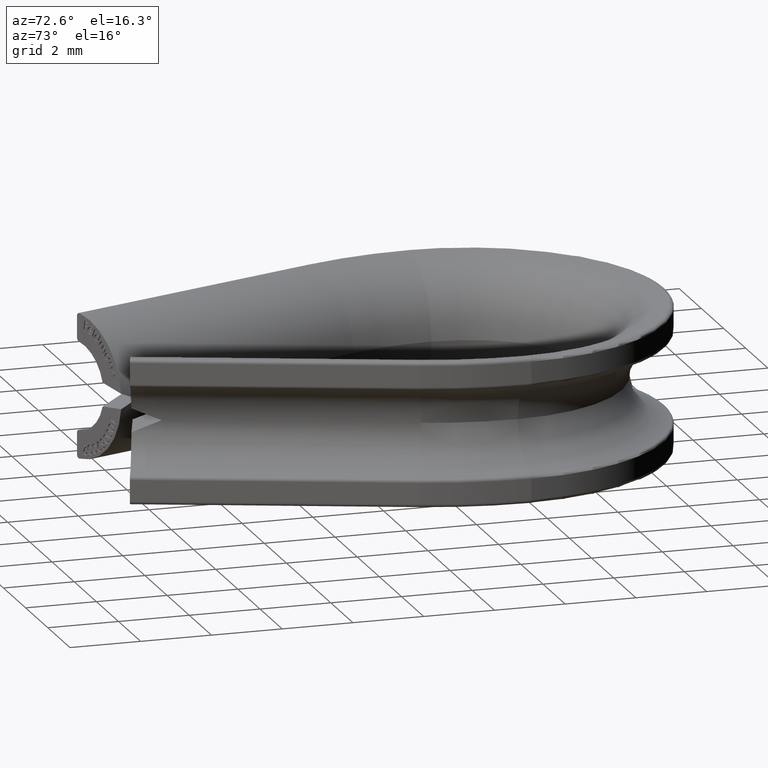
[diagram: clean part render]
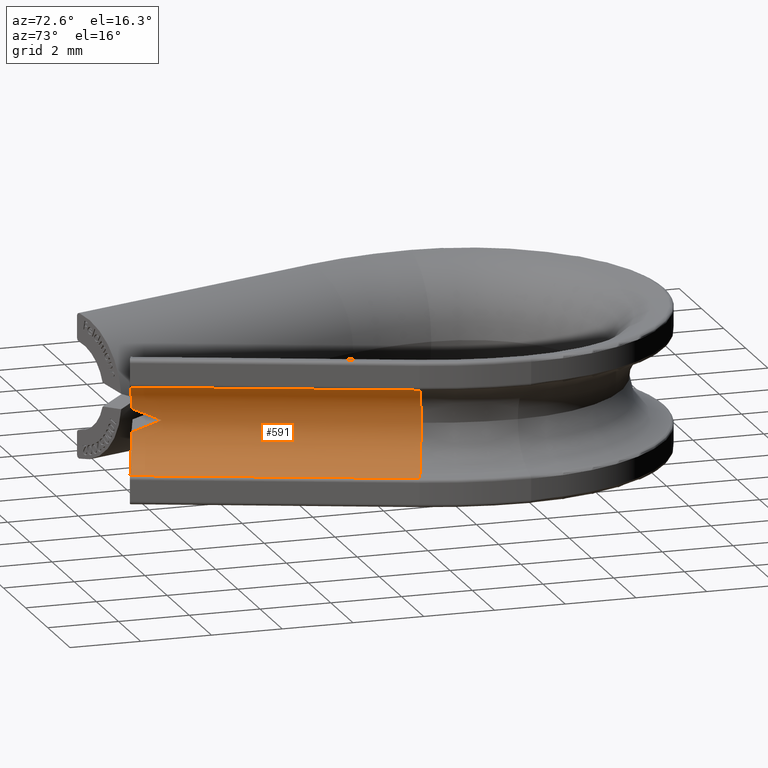
[diagram: same view with one face highlighted and labeled with its STEP entity id]
A machine part, auxiliary view. The second image highlights one B-rep face of the part: STEP entity #591.
In plain terms, the highlighted cylindrical surface (partial cylindrical patch) has radius 1.25 mm, axis along (-0.3328, -0.943, 0).
Its self-contained STEP definition (entity closure, byte-faithful):
#72 = DIRECTION ( 'NONE',  ( 0.3327819343494358200, 0.9430038092026181700, 0.0000000000000000000 ) ) ;
#141 = CYLINDRICAL_SURFACE ( 'NONE', #2388, 1.250000000000000000 ) ;
#476 = CARTESIAN_POINT ( 'NONE',  ( 1.297583511952876000, -0.2814637452390859100, 0.3352299115583601800 ) ) ;
#560 = CARTESIAN_POINT ( 'NONE',  ( 4.903211722005555600, 6.734543207241696200, -1.242259987499883600 ) ) ;
#569 =( BOUNDED_CURVE ( )  B_SPLINE_CURVE ( 3, ( #1776, #3998, #2756, #476 ),
 .UNSPECIFIED., .F., .F. ) 
 B_SPLINE_CURVE_WITH_KNOTS ( ( 4, 4 ),
 ( 4.854186687855037300, 5.125694096055115200 ),
 .UNSPECIFIED. ) 
 CURVE ( )  GEOMETRIC_REPRESENTATION_ITEM ( )  RATIONAL_B_SPLINE_CURVE ( ( 1.000000000000000000, 0.9938664056628923000, 0.9938664056628923000, 1.000000000000000000 ) ) 
 REPRESENTATION_ITEM ( '' )  );
#591 = ADVANCED_FACE ( 'NONE', ( #6604 ), #141, .F. ) ;
#999 = CARTESIAN_POINT ( 'NONE',  ( 2.433157808865367100, -0.6822029654163421800, 0.0000000000000000000 ) ) ;
#1297 = ORIENTED_EDGE ( 'NONE', *, *, #11258, .T. ) ;
#1469 = CARTESIAN_POINT ( 'NONE',  ( 5.034184473283693800, 6.688323494137608600, 0.0000000000000000000 ) ) ;
#1776 = CARTESIAN_POINT ( 'NONE',  ( 1.524800703606776800, 0.4999999999999987200, 4.814824860968089600E-032 ) ) ;
#1874 = EDGE_CURVE ( 'NONE', #14843, #4055, #10536, .T. ) ;
#1886 = ORIENTED_EDGE ( 'NONE', *, *, #12149, .F. ) ;
#2028 = EDGE_CURVE ( 'NONE', #6137, #12668, #14159, .T. ) ;
#2075 = VERTEX_POINT ( 'NONE', #2827 ) ;
#2121 = ORIENTED_EDGE ( 'NONE', *, *, #1874, .T. ) ;
#2388 = AXIS2_PLACEMENT_3D ( 'NONE', #11979, #2581, #2673 ) ;
#2581 = DIRECTION ( 'NONE',  ( -0.3327819343494358200, -0.9430038092026182800, 0.0000000000000000000 ) ) ;
#2599 = EDGE_CURVE ( 'NONE', #2075, #4055, #10327, .T. ) ;
#2673 = DIRECTION ( 'NONE',  ( 0.9430038092026180600, -0.3327819343494360900, 0.0000000000000000000 ) ) ;
#2756 = CARTESIAN_POINT ( 'NONE',  ( 1.355242991658078600, -0.02662477803910438500, 0.2259098759757280900 ) ) ;
#2827 = CARTESIAN_POINT ( 'NONE',  ( 1.297583511952876000, -0.2814637452390859100, 0.3352299115583601800 ) ) ;
#3116 = CIRCLE ( 'NONE', #6664, 1.250000000000000000 ) ;
#3256 = CARTESIAN_POINT ( 'NONE',  ( 4.903211722005555600, 6.734543207241696200, 1.242259987499883600 ) ) ;
#3289 = CARTESIAN_POINT ( 'NONE',  ( 1.524800703606776800, 0.4999999999999987200, 4.814824860968089600E-032 ) ) ;
#3559 = CARTESIAN_POINT ( 'NONE',  ( 2.302185057587228500, -0.6359832523122547200, -1.242259987499883600 ) ) ;
#3630 = DIRECTION ( 'NONE',  ( 0.3327819343494358200, 0.9430038092026181700, 0.0000000000000000000 ) ) ;
#3996 = DIRECTION ( 'NONE',  ( 0.3327819343494358200, 0.9430038092026181700, 0.0000000000000000000 ) ) ;
#3998 = CARTESIAN_POINT ( 'NONE',  ( 1.431449475198608400, 0.2354707245309361800, 0.1134769541905752300 ) ) ;
#4040 = VECTOR ( 'NONE', #13382, 1000.000000000000200 ) ;
#4055 = VERTEX_POINT ( 'NONE', #14946 ) ;
#4297 = DIRECTION ( 'NONE',  ( -0.3327819343494357000, -0.9430038092026180600, 0.0000000000000000000 ) ) ;
#4674 = AXIS2_PLACEMENT_3D ( 'NONE', #999, #3630, #14993 ) ;
#4948 = CARTESIAN_POINT ( 'NONE',  ( 2.433157808865367100, -0.6822029654163421800, 0.0000000000000000000 ) ) ;
#5027 = DIRECTION ( 'NONE',  ( 0.0000000000000000000, 0.0000000000000000000, -1.000000000000000000 ) ) ;
#5183 = EDGE_CURVE ( 'NONE', #12668, #13847, #6911, .T. ) ;
#5464 = CARTESIAN_POINT ( 'NONE',  ( 4.903211721999102000, 6.734543207243972600, 1.242259987498333800 ) ) ;
#5638 = DIRECTION ( 'NONE',  ( 0.0000000000000000000, 0.0000000000000000000, -1.000000000000000000 ) ) ;
#5756 = AXIS2_PLACEMENT_3D ( 'NONE', #4948, #72, #10791 ) ;
#5783 = CARTESIAN_POINT ( 'NONE',  ( 5.034184473283693800, 6.688323494137608600, 0.0000000000000000000 ) ) ;
#6093 = EDGE_LOOP ( 'NONE', ( #1886, #6204, #7762, #11956, #1297, #10686, #2121, #14462 ) ) ;
#6137 = VERTEX_POINT ( 'NONE', #3559 ) ;
#6204 = ORIENTED_EDGE ( 'NONE', *, *, #5183, .F. ) ;
#6604 = FACE_OUTER_BOUND ( 'NONE', #6093, .T. ) ;
#6664 = AXIS2_PLACEMENT_3D ( 'NONE', #1469, #3996, #5027 ) ;
#6702 = VERTEX_POINT ( 'NONE', #13540 ) ;
#6911 =( BOUNDED_CURVE ( )  B_SPLINE_CURVE ( 3, ( #10137, #12604, #12494, #14829 ),
 .UNSPECIFIED., .F., .F. ) 
 B_SPLINE_CURVE_WITH_KNOTS ( ( 4, 4 ),
 ( 1.157491211124470800, 1.428998619324548500 ),
 .UNSPECIFIED. ) 
 CURVE ( )  GEOMETRIC_REPRESENTATION_ITEM ( )  RATIONAL_B_SPLINE_CURVE ( ( 1.000000000000000000, 0.9938664056628923000, 0.9938664056628923000, 1.000000000000000000 ) ) 
 REPRESENTATION_ITEM ( '' )  );
#6914 = CARTESIAN_POINT ( 'NONE',  ( 4.903211722004519900, 6.734543207242061200, -1.242259987499635200 ) ) ;
#7762 = ORIENTED_EDGE ( 'NONE', *, *, #2028, .F. ) ;
#7961 = VERTEX_POINT ( 'NONE', #6914 ) ;
#10137 = CARTESIAN_POINT ( 'NONE',  ( 1.297583511952876000, -0.2814637452390859100, -0.3352299115583601800 ) ) ;
#10168 = CARTESIAN_POINT ( 'NONE',  ( 1.297583511952876000, -0.2814637452390859100, -0.3352299115583601800 ) ) ;
#10327 = CIRCLE ( 'NONE', #4674, 1.250000000000000000 ) ;
#10536 = LINE ( 'NONE', #3256, #11821 ) ;
#10658 = EDGE_CURVE ( 'NONE', #6702, #14843, #3116, .T. ) ;
#10686 = ORIENTED_EDGE ( 'NONE', *, *, #10658, .T. ) ;
#10791 = DIRECTION ( 'NONE',  ( 0.0000000000000000000, 0.0000000000000000000, -1.000000000000000000 ) ) ;
#10988 = CIRCLE ( 'NONE', #12616, 1.250000000000000000 ) ;
#11258 = EDGE_CURVE ( 'NONE', #7961, #6702, #10988, .T. ) ;
#11821 = VECTOR ( 'NONE', #4297, 1000.000000000000200 ) ;
#11956 = ORIENTED_EDGE ( 'NONE', *, *, #12612, .T. ) ;
#11979 = CARTESIAN_POINT ( 'NONE',  ( 5.034184473283693800, 6.688323494137608600, 0.0000000000000000000 ) ) ;
#12149 = EDGE_CURVE ( 'NONE', #13847, #2075, #569, .T. ) ;
#12494 = CARTESIAN_POINT ( 'NONE',  ( 1.431449475198607800, 0.2354707245309343700, -0.1134769541905759600 ) ) ;
#12604 = CARTESIAN_POINT ( 'NONE',  ( 1.355242991658077900, -0.02662477803910606400, -0.2259098759757287300 ) ) ;
#12612 = EDGE_CURVE ( 'NONE', #6137, #7961, #13959, .T. ) ;
#12616 = AXIS2_PLACEMENT_3D ( 'NONE', #5783, #13938, #5638 ) ;
#12668 = VERTEX_POINT ( 'NONE', #10168 ) ;
#13382 = DIRECTION ( 'NONE',  ( 0.3327819343494357000, 0.9430038092026180600, -0.0000000000000000000 ) ) ;
#13540 = CARTESIAN_POINT ( 'NONE',  ( 3.855429711780420800, 7.104300912074403000, 1.530808498934191600E-016 ) ) ;
#13847 = VERTEX_POINT ( 'NONE', #3289 ) ;
#13938 = DIRECTION ( 'NONE',  ( 0.3327819343494358200, 0.9430038092026181700, 0.0000000000000000000 ) ) ;
#13959 = LINE ( 'NONE', #560, #4040 ) ;
#14159 = CIRCLE ( 'NONE', #5756, 1.250000000000000000 ) ;
#14462 = ORIENTED_EDGE ( 'NONE', *, *, #2599, .F. ) ;
#14829 = CARTESIAN_POINT ( 'NONE',  ( 1.524800703606776800, 0.4999999999999987200, 4.814824860968089600E-032 ) ) ;
#14843 = VERTEX_POINT ( 'NONE', #5464 ) ;
#14946 = CARTESIAN_POINT ( 'NONE',  ( 2.302185057587228500, -0.6359832523122548300, 1.242259987499883600 ) ) ;
#14993 = DIRECTION ( 'NONE',  ( 0.0000000000000000000, 0.0000000000000000000, -1.000000000000000000 ) ) ;